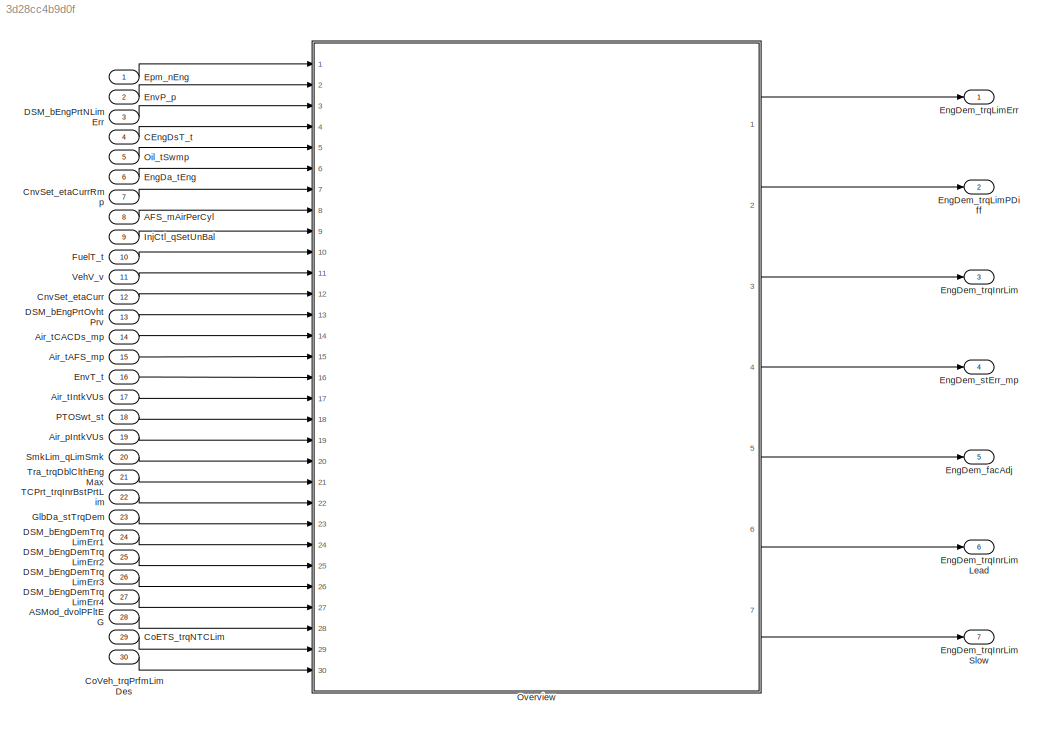
MODEL slx_3d28cc4b9d0f
KIND model
CONFIG AbsTol = auto
CONFIG EnableMultiTasking = off
CONFIG FixedStep = auto
CONFIG MaxStep = auto
CONFIG MinStep = auto
CONFIG RelTol = 1e-3
CONFIG SampleTimeConstraint = Unconstrained
CONFIG Solver = VariableStepAuto
CONFIG SolverName = VariableStepAuto
CONFIG StartTime = 0.0
CONFIG StopTime = 10.0
BLOCK [Inport] AFS_mAirPerCyl
  IconDisplay = Port number
  Port = 8
BLOCK [Inport] ASMod_dvolPFltEG
  IconDisplay = Port number
  Port = 28
BLOCK [Inport] Air_pIntkVUs
  IconDisplay = Port number
  Port = 19
BLOCK [Inport] Air_tAFS_mp
  IconDisplay = Port number
  Port = 15
BLOCK [Inport] Air_tCACDs_mp
  IconDisplay = Port number
  Port = 14
BLOCK [Inport] Air_tIntkVUs
  IconDisplay = Port number
  Port = 17
BLOCK [Inport] CEngDsT_t
  IconDisplay = Port number
  Port = 4
BLOCK [Inport] CnvSet_etaCurr
  IconDisplay = Port number
  Port = 12
BLOCK [Inport] CnvSet_etaCurrRmp
  IconDisplay = Port number
  Port = 7
BLOCK [Inport] CoETS_trqNTCLim
  IconDisplay = Port number
  Port = 29
BLOCK [Inport] CoVeh_trqPrfmLimDes
  IconDisplay = Port number
  Port = 30
BLOCK [Inport] DSM_bEngDemTrqLimErr1
  IconDisplay = Port number
  Port = 24
BLOCK [Inport] DSM_bEngDemTrqLimErr2
  IconDisplay = Port number
  Port = 25
BLOCK [Inport] DSM_bEngDemTrqLimErr3
  IconDisplay = Port number
  Port = 26
BLOCK [Inport] DSM_bEngDemTrqLimErr4
  IconDisplay = Port number
  Port = 27
BLOCK [Inport] DSM_bEngPrtNLimErr
  IconDisplay = Port number
  Port = 3
BLOCK [Inport] DSM_bEngPrtOvhtPrv
  IconDisplay = Port number
  Port = 13
BLOCK [Inport] EngDa_tEng
  IconDisplay = Port number
  Port = 6
BLOCK [Outport] EngDem_facAdj
  IconDisplay = Port number
  Port = 5
BLOCK [Outport] EngDem_stErr_mp
  IconDisplay = Port number
  Port = 4
BLOCK [Outport] EngDem_trqInrLim
  IconDisplay = Port number
  Port = 3
BLOCK [Outport] EngDem_trqInrLimLead
  IconDisplay = Port number
  Port = 6
BLOCK [Outport] EngDem_trqInrLimSlow
  IconDisplay = Port number
  Port = 7
BLOCK [Outport] EngDem_trqLimErr
  IconDisplay = Port number
BLOCK [Outport] EngDem_trqLimPDiff
  IconDisplay = Port number
  Port = 2
BLOCK [Inport] EnvP_p
  IconDisplay = Port number
  Port = 2
BLOCK [Inport] EnvT_t
  IconDisplay = Port number
  Port = 16
BLOCK [Inport] Epm_nEng
  IconDisplay = Port number
BLOCK [Inport] FuelT_t
  IconDisplay = Port number
  Port = 10
BLOCK [Inport] GlbDa_stTrqDem
  IconDisplay = Port number
  Port = 23
BLOCK [Inport] InjCtl_qSetUnBal
  IconDisplay = Port number
  Port = 9
BLOCK [Inport] Oil_tSwmp
  IconDisplay = Port number
  Port = 5
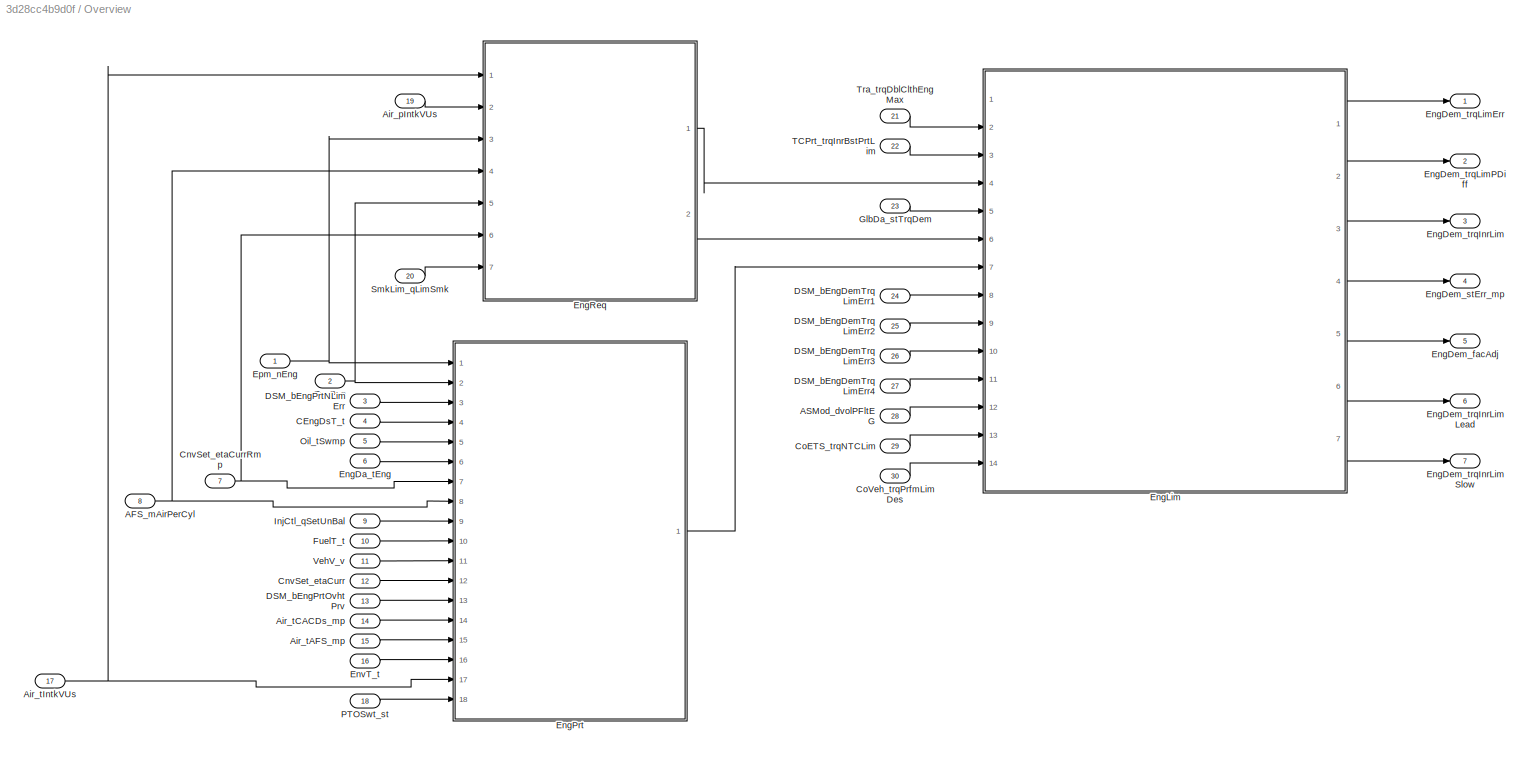
BLOCK [SubSystem] Overview
  Ports = [30, 7]
  RequestExecContextInheritance = off
BLOCK [Inport] Overview/AFS_mAirPerCyl
  IconDisplay = Port number
  Port = 8
BLOCK [Inport] Overview/ASMod_dvolPFltEG
  IconDisplay = Port number
  Port = 28
BLOCK [Inport] Overview/Air_pIntkVUs
  IconDisplay = Port number
  Port = 19
BLOCK [Inport] Overview/Air_tAFS_mp
  IconDisplay = Port number
  Port = 15
BLOCK [Inport] Overview/Air_tCACDs_mp
  IconDisplay = Port number
  Port = 14
BLOCK [Inport] Overview/Air_tIntkVUs
  IconDisplay = Port number
  Port = 17
BLOCK [Inport] Overview/CEngDsT_t
  IconDisplay = Port number
  Port = 4
BLOCK [Inport] Overview/CnvSet_etaCurr
  IconDisplay = Port number
  Port = 12
BLOCK [Inport] Overview/CnvSet_etaCurrRmp
  IconDisplay = Port number
  Port = 7
BLOCK [Inport] Overview/CoETS_trqNTCLim
  IconDisplay = Port number
  Port = 29
BLOCK [Inport] Overview/CoVeh_trqPrfmLimDes
  IconDisplay = Port number
  Port = 30
BLOCK [Inport] Overview/DSM_bEngDemTrqLimErr1
  IconDisplay = Port number
  Port = 24
BLOCK [Inport] Overview/DSM_bEngDemTrqLimErr2
  IconDisplay = Port number
  Port = 25
BLOCK [Inport] Overview/DSM_bEngDemTrqLimErr3
  IconDisplay = Port number
  Port = 26
BLOCK [Inport] Overview/DSM_bEngDemTrqLimErr4
  IconDisplay = Port number
  Port = 27
BLOCK [Inport] Overview/DSM_bEngPrtNLimErr
  IconDisplay = Port number
  Port = 3
BLOCK [Inport] Overview/DSM_bEngPrtOvhtPrv
  IconDisplay = Port number
  Port = 13
BLOCK [Inport] Overview/EngDa_tEng
  IconDisplay = Port number
  Port = 6
BLOCK [Outport] Overview/EngDem_facAdj
  IconDisplay = Port number
  Port = 5
BLOCK [Outport] Overview/EngDem_stErr_mp
  IconDisplay = Port number
  Port = 4
BLOCK [Outport] Overview/EngDem_trqInrLim
  IconDisplay = Port number
  Port = 3
BLOCK [Outport] Overview/EngDem_trqInrLimLead
  IconDisplay = Port number
  Port = 6
BLOCK [Outport] Overview/EngDem_trqInrLimSlow
  IconDisplay = Port number
  Port = 7
BLOCK [Outport] Overview/EngDem_trqLimErr
  IconDisplay = Port number
BLOCK [Outport] Overview/EngDem_trqLimPDiff
  IconDisplay = Port number
  Port = 2
BLOCK [ModelReference] Overview/EngLim
  ModelNameDialog = EngLim
  ModelReferenceVersion = 1.5
  Ports = [14, 7]
BLOCK [ModelReference] Overview/EngPrt
  ModelNameDialog = EngPrt
  ModelReferenceVersion = 1.4
  Ports = [18, 1]
BLOCK [ModelReference] Overview/EngReq
  ModelNameDialog = EngReq
  ModelReferenceVersion = 1.5
  Ports = [7, 2]
BLOCK [Inport] Overview/EnvP_p
  IconDisplay = Port number
  Port = 2
BLOCK [Inport] Overview/EnvT_t
  IconDisplay = Port number
  Port = 16
BLOCK [Inport] Overview/Epm_nEng
  IconDisplay = Port number
BLOCK [Inport] Overview/FuelT_t
  IconDisplay = Port number
  Port = 10
BLOCK [Inport] Overview/GlbDa_stTrqDem
  IconDisplay = Port number
  Port = 23
BLOCK [Inport] Overview/InjCtl_qSetUnBal
  IconDisplay = Port number
  Port = 9
BLOCK [Inport] Overview/Oil_tSwmp
  IconDisplay = Port number
  Port = 5
BLOCK [Inport] Overview/PTOSwt_st
  IconDisplay = Port number
  Port = 18
BLOCK [Inport] Overview/SmkLim_qLimSmk
  IconDisplay = Port number
  Port = 20
BLOCK [Inport] Overview/TCPrt_trqInrBstPrtLim
  IconDisplay = Port number
  Port = 22
BLOCK [Inport] Overview/Tra_trqDblClthEngMax
  IconDisplay = Port number
  Port = 21
BLOCK [Inport] Overview/VehV_v
  IconDisplay = Port number
  Port = 11
BLOCK [Inport] PTOSwt_st
  IconDisplay = Port number
  Port = 18
BLOCK [Inport] SmkLim_qLimSmk
  IconDisplay = Port number
  Port = 20
BLOCK [Inport] TCPrt_trqInrBstPrtLim
  IconDisplay = Port number
  Port = 22
BLOCK [Inport] Tra_trqDblClthEngMax
  IconDisplay = Port number
  Port = 21
BLOCK [Inport] VehV_v
  IconDisplay = Port number
  Port = 11
LINE AFS_mAirPerCyl:1 -> Overview:8
LINE ASMod_dvolPFltEG:1 -> Overview:28
LINE Air_pIntkVUs:1 -> Overview:19
LINE Air_tAFS_mp:1 -> Overview:15
LINE Air_tCACDs_mp:1 -> Overview:14
LINE Air_tIntkVUs:1 -> Overview:17
LINE CEngDsT_t:1 -> Overview:4
LINE CnvSet_etaCurr:1 -> Overview:12
LINE CnvSet_etaCurrRmp:1 -> Overview:7
LINE CoETS_trqNTCLim:1 -> Overview:29
LINE CoVeh_trqPrfmLimDes:1 -> Overview:30
LINE DSM_bEngDemTrqLimErr1:1 -> Overview:24
LINE DSM_bEngDemTrqLimErr2:1 -> Overview:25
LINE DSM_bEngDemTrqLimErr3:1 -> Overview:26
LINE DSM_bEngDemTrqLimErr4:1 -> Overview:27
LINE DSM_bEngPrtNLimErr:1 -> Overview:3
LINE DSM_bEngPrtOvhtPrv:1 -> Overview:13
LINE EngDa_tEng:1 -> Overview:6
LINE EnvP_p:1 -> Overview:2
LINE EnvT_t:1 -> Overview:16
LINE Epm_nEng:1 -> Overview:1
LINE FuelT_t:1 -> Overview:10
LINE GlbDa_stTrqDem:1 -> Overview:23
LINE InjCtl_qSetUnBal:1 -> Overview:9
LINE Oil_tSwmp:1 -> Overview:5
NET Overview/AFS_mAirPerCyl:1 -> Overview/EngPrt:8, Overview/EngReq:4
LINE Overview/ASMod_dvolPFltEG:1 -> Overview/EngLim:12
LINE Overview/Air_pIntkVUs:1 -> Overview/EngReq:2
LINE Overview/Air_tAFS_mp:1 -> Overview/EngPrt:15
LINE Overview/Air_tCACDs_mp:1 -> Overview/EngPrt:14
NET Overview/Air_tIntkVUs:1 -> Overview/EngPrt:17, Overview/EngReq:1
LINE Overview/CEngDsT_t:1 -> Overview/EngPrt:4
LINE Overview/CnvSet_etaCurr:1 -> Overview/EngPrt:12
NET Overview/CnvSet_etaCurrRmp:1 -> Overview/EngPrt:7, Overview/EngReq:6
LINE Overview/CoETS_trqNTCLim:1 -> Overview/EngLim:13
LINE Overview/CoVeh_trqPrfmLimDes:1 -> Overview/EngLim:14
LINE Overview/DSM_bEngDemTrqLimErr1:1 -> Overview/EngLim:8
LINE Overview/DSM_bEngDemTrqLimErr2:1 -> Overview/EngLim:9
LINE Overview/DSM_bEngDemTrqLimErr3:1 -> Overview/EngLim:10
LINE Overview/DSM_bEngDemTrqLimErr4:1 -> Overview/EngLim:11
LINE Overview/DSM_bEngPrtNLimErr:1 -> Overview/EngPrt:3
LINE Overview/DSM_bEngPrtOvhtPrv:1 -> Overview/EngPrt:13
LINE Overview/EngDa_tEng:1 -> Overview/EngPrt:6
LINE Overview/EngLim:1 -> Overview/EngDem_trqLimErr:1
LINE Overview/EngLim:2 -> Overview/EngDem_trqLimPDiff:1
LINE Overview/EngLim:3 -> Overview/EngDem_trqInrLim:1
LINE Overview/EngLim:4 -> Overview/EngDem_stErr_mp:1
LINE Overview/EngLim:5 -> Overview/EngDem_facAdj:1
LINE Overview/EngLim:6 -> Overview/EngDem_trqInrLimLead:1
LINE Overview/EngLim:7 -> Overview/EngDem_trqInrLimSlow:1
LINE Overview/EngPrt:1 -> Overview/EngLim:7
LINE Overview/EngReq:1 -> Overview/EngLim:4
LINE Overview/EngReq:2 -> Overview/EngLim:6
NET Overview/EnvP_p:1 -> Overview/EngPrt:2, Overview/EngReq:5
LINE Overview/EnvT_t:1 -> Overview/EngPrt:16
NET Overview/Epm_nEng:1 -> Overview/EngPrt:1, Overview/EngReq:3
LINE Overview/FuelT_t:1 -> Overview/EngPrt:10
LINE Overview/GlbDa_stTrqDem:1 -> Overview/EngLim:5
LINE Overview/InjCtl_qSetUnBal:1 -> Overview/EngPrt:9
LINE Overview/Oil_tSwmp:1 -> Overview/EngPrt:5
LINE Overview/PTOSwt_st:1 -> Overview/EngPrt:18
LINE Overview/SmkLim_qLimSmk:1 -> Overview/EngReq:7
LINE Overview/TCPrt_trqInrBstPrtLim:1 -> Overview/EngLim:3
LINE Overview/Tra_trqDblClthEngMax:1 -> Overview/EngLim:2
LINE Overview/VehV_v:1 -> Overview/EngPrt:11
LINE Overview:1 -> EngDem_trqLimErr:1
LINE Overview:2 -> EngDem_trqLimPDiff:1
LINE Overview:3 -> EngDem_trqInrLim:1
LINE Overview:4 -> EngDem_stErr_mp:1
LINE Overview:5 -> EngDem_facAdj:1
LINE Overview:6 -> EngDem_trqInrLimLead:1
LINE Overview:7 -> EngDem_trqInrLimSlow:1
LINE PTOSwt_st:1 -> Overview:18
LINE SmkLim_qLimSmk:1 -> Overview:20
LINE TCPrt_trqInrBstPrtLim:1 -> Overview:22
LINE Tra_trqDblClthEngMax:1 -> Overview:21
LINE VehV_v:1 -> Overview:11
note: NET lines group one-source signal fan-out (src -> all destinations, sorted); 1:1 wires keep LINE
